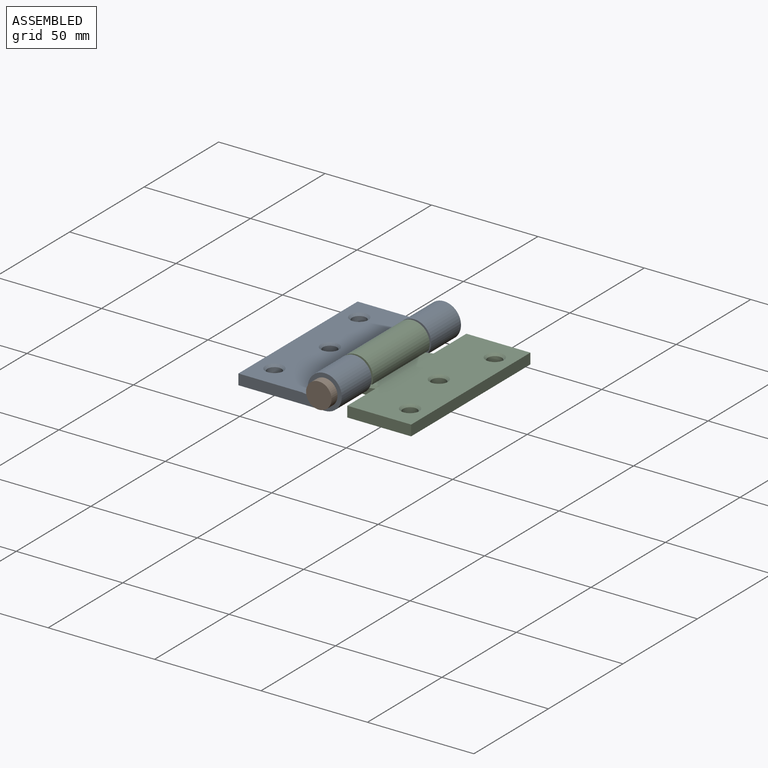
[diagram: assembled view]
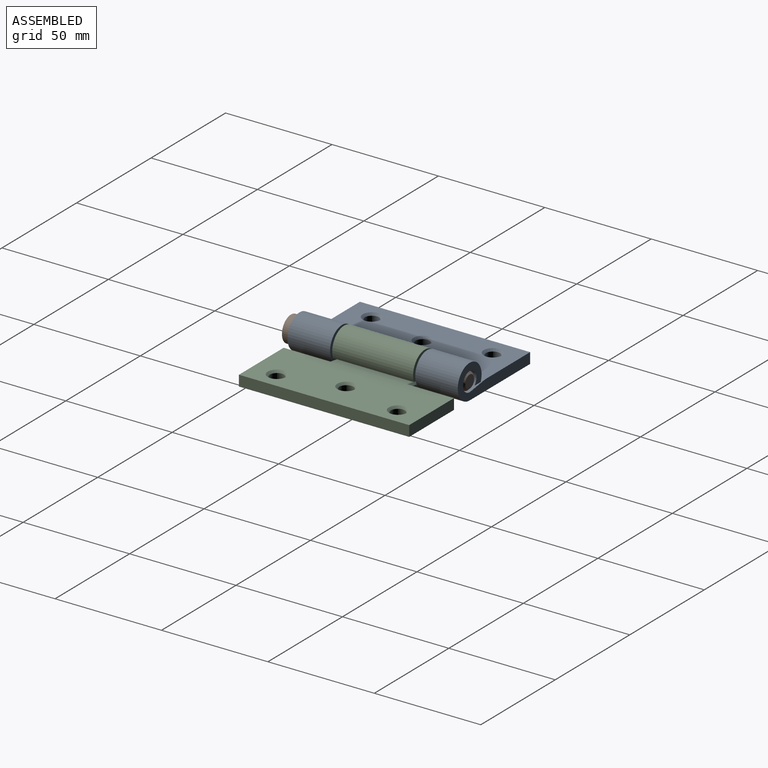
[diagram: assembled view, second angle]
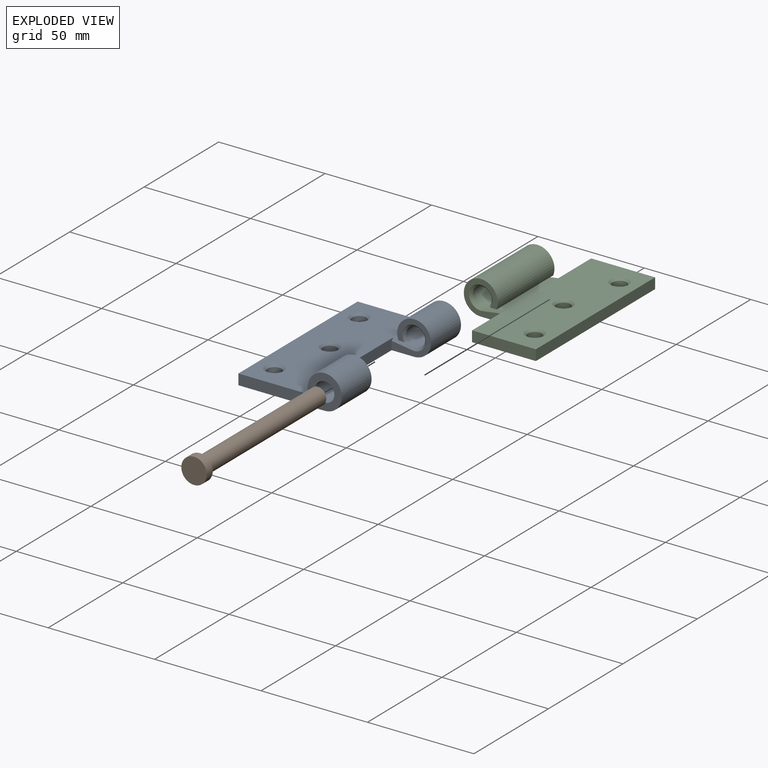
[diagram: exploded view]
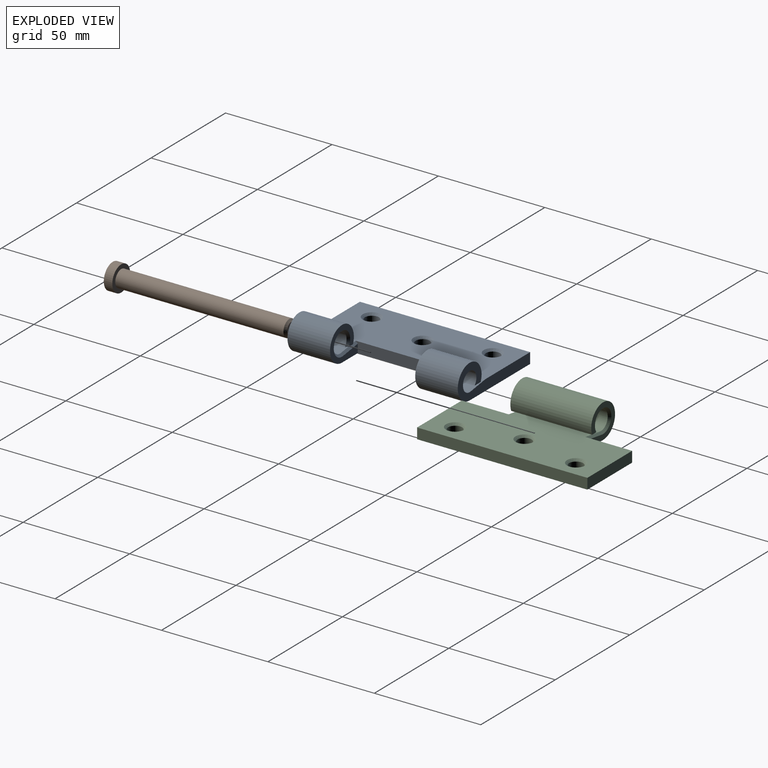
[diagram: exploded view, second angle]
ASSEMBLY  parts=3 mates=2
PART A: 26 faces, bbox 48.6x80x16 mm
  f0: cylinder r=8mm len=20mm, axis (0,1,0), area 815.5mm2, adj f1,f4,f12,f17
  f1: plane 20x4.06mm, normal (0,0,-1), area 80.6mm2, adj f0,f2,f12,f17,f19
  f2: cylinder r=4.5mm len=19mm, axis (0,1,0), area 477.7mm2, adj f1,f3,f12,f19
  f3: plane 19x9.93mm, normal (0.14,0,0.99), area 190.7mm2, adj f2,f9,f12,f20
  f4: plane 80x40.58mm, normal (0,0,-1), area 2720.7mm2, adj f0,f5,f10,f11,f12,f13,f14,f15
  f5: cylinder r=8mm len=20mm, axis (0,1,0), area 815.5mm2, adj f4,f6,f11,f18
  f6: plane 20x4.06mm, normal (0,0,-1), area 80.6mm2, adj f5,f7,f11,f18,f21
  f7: cylinder r=4.5mm len=19mm, axis (0,1,0), area 477.7mm2, adj f6,f8,f11,f21
  f8: plane 19x9.93mm, normal (0.14,0,0.99), area 190.7mm2, adj f7,f9,f11,f22
  f9: plane 80x30mm, normal (0,0,1), area 2225.7mm2, adj f3,f8,f10,f11,f12,f16,f23,f24
  f10: plane 80x5mm, normal (-1,0,0), area 400mm2, adj f4,f9,f11,f12
  f11: plane 48.58x16mm, normal (0,-1,0), area 308.8mm2, adj f4,f5,f6,f7,f8,f9,f10
  f12: plane 48.58x16mm, normal (0,1,0), area 308.8mm2, adj f0,f1,f2,f3,f4,f9,f10
  f13: cylinder r=3.3mm len=6.6mm, axis (0,0,1), area 82.9mm2, adj f4,f23
  f14: cylinder r=3.3mm len=6.6mm, axis (0,0,1), area 82.9mm2, adj f4,f24
  f15: cylinder r=3.3mm len=6.6mm, axis (0,0,1), area 82.9mm2, adj f4,f25
  f16: plane 42x5mm, normal (1,0,0), area 201mm2, adj f4,f9,f17,f18,f20,f22
  f17: plane 18.58x16mm, normal (0,-1,0), area 121.4mm2, adj f0,f1,f4,f16,f19,f20
  f18: plane 18.58x16mm, normal (0,1,0), area 121.4mm2, adj f4,f5,f6,f16,f21,f22
  f19: cone r=4.5mm half-angle=45deg, axis (0,-1,0), area 38.9mm2, adj f1,f2,f17,f20
  f20: plane 9.93x2.44mm, normal (0.1,-0.71,0.7), area 14.1mm2, adj f3,f16,f17,f19
  f21: cone r=5.5mm half-angle=45deg, axis (0,1,0), area 38.9mm2, adj f6,f7,f18,f22
  f22: plane 9.93x2.44mm, normal (0.1,0.71,0.7), area 14.1mm2, adj f8,f16,f18,f21
  f23: cone r=3.3mm half-angle=45deg, axis (0,0,1), area 33.8mm2, adj f9,f13
  f24: cone r=3.3mm half-angle=45deg, axis (0,0,1), area 33.8mm2, adj f9,f14
  f25: cone r=3.3mm half-angle=45deg, axis (0,0,1), area 33.8mm2, adj f9,f15
PART B: 6 faces, bbox 12x84x12 mm
  f0: cylinder r=4mm len=79mm, axis (0,-1,0), area 1985.5mm2, adj f4,f5
  f1: plane 6x6mm, normal (0,1,0), area 28.3mm2, adj f5
  f2: cylinder r=6mm len=12mm, axis (0,1,0), area 150.8mm2, adj f3,f4
  f3: plane 12x12mm, normal (0,-1,0), area 113.1mm2, adj f2
  f4: plane 12x12mm, normal (0,1,0), area 62.8mm2, adj f0,f2
  f5: cone r=4mm half-angle=45deg, axis (0,-1,0), area 31.1mm2, adj f0,f1
PART C: 23 faces, bbox 48.6x80x16 mm
  f0: cylinder r=8mm len=38mm, axis (0,1,0), area 1549.4mm2, adj f1,f4,f12,f15
  f1: plane 38x4.06mm, normal (0,0,-1), area 153.1mm2, adj f0,f2,f12,f15,f16,f18
  f2: cylinder r=4.5mm len=36mm, axis (0,1,0), area 905.2mm2, adj f1,f3,f16,f18
  f3: plane 80x9.93mm, normal (-0.14,0,0.99), area 363.3mm2, adj f2,f5,f6,f8,f13,f14,f17,f19
  f4: plane 80x40.58mm, normal (0,0,-1), area 2701.3mm2, adj f0,f5,f7,f8,f9,f10,f11,f12
  f5: plane 30.01x5mm, normal (0,-1,0), area 150.1mm2, adj f3,f4,f6,f7,f13
  f6: plane 80x30mm, normal (0,0,1), area 2225.7mm2, adj f3,f5,f7,f8,f20,f21,f22
  f7: plane 80x5mm, normal (1,0,0), area 400mm2, adj f4,f5,f6,f8
  f8: plane 30.08x5mm, normal (0,1,0), area 150.4mm2, adj f3,f4,f6,f7,f14
  f9: cylinder r=3.3mm len=6.6mm, axis (0,0,1), area 82.9mm2, adj f4,f20
  f10: cylinder r=3.3mm len=6.6mm, axis (0,0,1), area 82.9mm2, adj f4,f21
  f11: cylinder r=3.3mm len=6.6mm, axis (0,0,1), area 82.9mm2, adj f4,f22
  f12: plane 18.57x16mm, normal (0,-1,0), area 121.3mm2, adj f0,f1,f4,f13,f18,f19
  f13: plane 22x5mm, normal (-1,0,0), area 105.5mm2, adj f3,f4,f5,f12,f19
  f14: plane 22x4.99mm, normal (-1,0,0), area 105.3mm2, adj f3,f4,f8,f15,f17
  f15: plane 18.51x16mm, normal (0,1,0), area 121.1mm2, adj f0,f1,f4,f14,f16,f17
  f16: cone r=4.5mm half-angle=45deg, axis (0,1,0), area 38.9mm2, adj f1,f2,f15,f17
  f17: plane 9.86x2.43mm, normal (-0.1,0.71,0.7), area 14mm2, adj f3,f14,f15,f16
  f18: cone r=4.5mm half-angle=45deg, axis (0,-1,0), area 38.9mm2, adj f1,f2,f12,f19
  f19: plane 9.92x2.44mm, normal (-0.1,-0.71,0.7), area 14.1mm2, adj f3,f12,f13,f18
  f20: cone r=4.3mm half-angle=45deg, axis (0,0,1), area 33.8mm2, adj f6,f9
  f21: cone r=4.3mm half-angle=45deg, axis (0,0,1), area 33.8mm2, adj f6,f10
  f22: cone r=4.3mm half-angle=45deg, axis (0,0,1), area 33.8mm2, adj f6,f11
PLACE A t=(-5.49,-31.67,4.89)mm
PLACE B t=(-5.49,-31.67,4.89)mm
PLACE C t=(-34.33,-31.67,4.89)mm
MATE parallel A.f0 <-> C.f0  axis (0,1,0) through (5.09,-51.67,7.89)mm
MATE revolute B.f0 <-> A.f0  axis (0,1,0) through (5.09,8.33,7.89)mm
